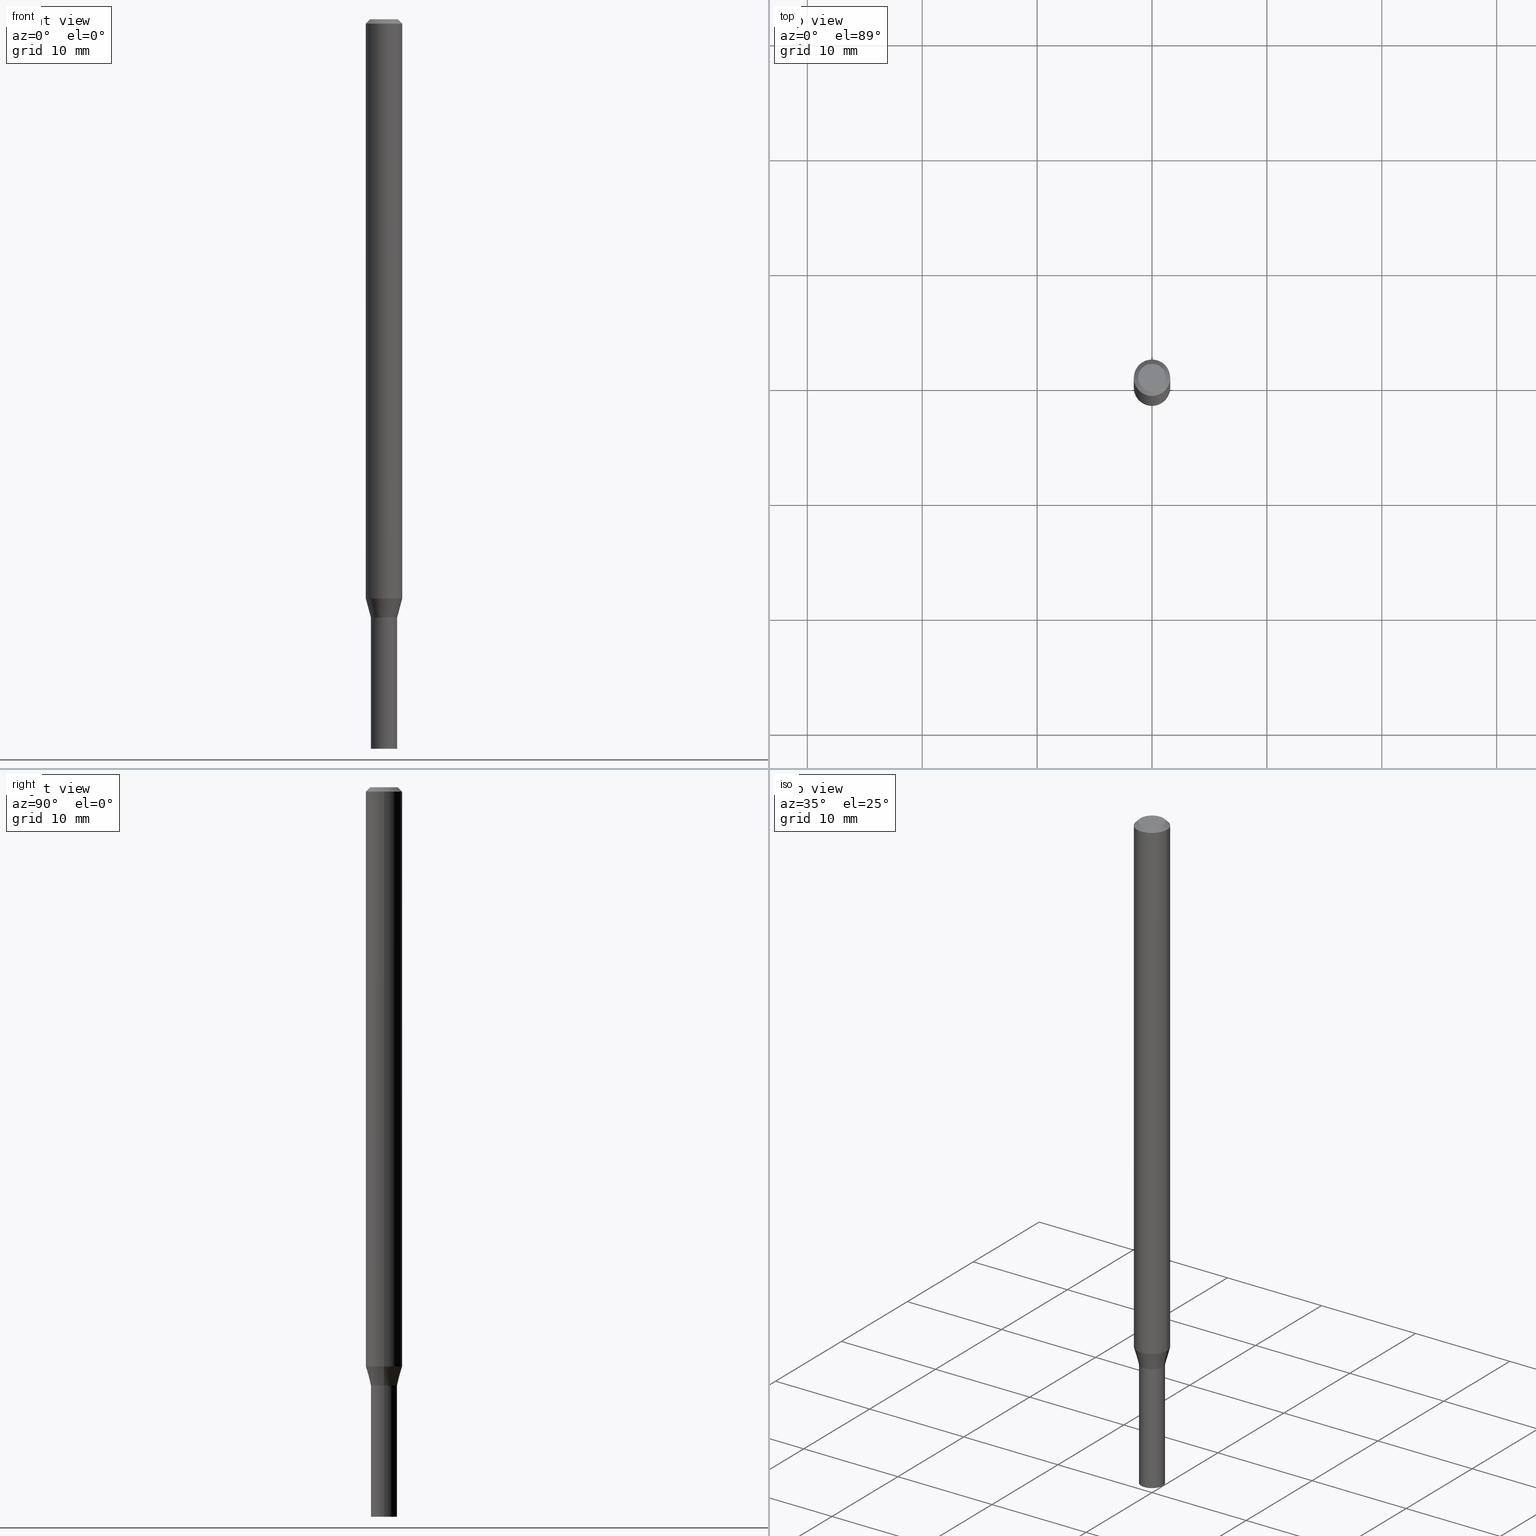
[diagram: canonical four-view strip — front | top / right | iso, engineering-drawing reading convention]
A machine part, canonical four-view strip (front | top / right | iso — engineering-drawing reading convention). The complete STEP part file that produces these views, byte-faithful:
ISO-10303-21;
HEADER;
FILE_DESCRIPTION (( 'STEP AP203' ),
    '1' );
FILE_NAME ('01247.STEP',
    '2024-03-20T00:31:18',
    ( '' ),
    ( '' ),
    'SwSTEP 2.0',
    'SolidWorks 2023',
    '' );
FILE_SCHEMA (( 'CONFIG_CONTROL_DESIGN' ));
ENDSEC;

DATA;
#1 = LOCAL_TIME ( 20, 31, 18.00000000000000000, #321 ) ;
#2 = APPROVAL_ROLE ( '' ) ;
#3 = ADVANCED_FACE ( 'NONE', ( #421 ), #372, .T. ) ;
#4 = DIRECTION ( 'NONE',  ( -2.445468806185136877E-29, 3.491481338843145188E-15, 1.000000000000000000 ) ) ;
#5 = DIRECTION ( 'NONE',  ( 1.000000000000000000, -6.982962677686267499E-15, 4.876176775795936353E-29 ) ) ;
#6 = CARTESIAN_POINT ( 'NONE',  ( 0.04499999999999999833, -3.142333204958819823E-16, 2.194279549108170967E-30 ) ) ;
#7 = DIRECTION ( 'NONE',  ( 1.000000000000000000, -6.982962677686266711E-15, 4.876176775795935793E-29 ) ) ;
#8 = CARTESIAN_POINT ( 'NONE',  ( -0.04499999999999999833, 3.197442310920450718E-16, -2.213520790614707560E-30 ) ) ;
#9 = EDGE_CURVE ( 'NONE', #164, #59, #284, .T. ) ;
#10 = CARTESIAN_POINT ( 'NONE',  ( 0.06250000000000000000, -4.888073874380388472E-16, -0.01499999999999999944 ) ) ;
#11 = EDGE_LOOP ( 'NONE', ( #198, #225 ) ) ;
#12 = CLOSED_SHELL ( 'NONE', ( #136, #196, #296, #174, #33, #327, #130, #3, #182, #303, #431, #441 ) ) ;
#13 = VERTEX_POINT ( 'NONE', #31 ) ;
#14 = FACE_OUTER_BOUND ( 'NONE', #173, .T. ) ;
#15 = EDGE_CURVE ( 'NONE', #373, #407, #144, .T. ) ;
#16 = EDGE_LOOP ( 'NONE', ( #454, #201, #170, #239 ) ) ;
#17 = ORIENTED_EDGE ( 'NONE', *, *, #446, .T. ) ;
#18 = DIRECTION ( 'NONE',  ( 1.000000000000000000, -6.982962677686258033E-15, 0.000000000000000000 ) ) ;
#19 = DATE_AND_TIME ( #203, #413 ) ;
#20 = AXIS2_PLACEMENT_3D ( 'NONE', #347, #354, #456 ) ;
#21 = LENGTH_MEASURE_WITH_UNIT ( LENGTH_MEASURE( 0.02539999999999999897 ), #131 );
#22 = EDGE_LOOP ( 'NONE', ( #417, #66, #294, #211 ) ) ;
#23 = DIRECTION ( 'NONE',  ( -2.438088387897960049E-29, 3.491481338843145188E-15, 1.000000000000000000 ) ) ;
#24 = CC_DESIGN_PERSON_AND_ORGANIZATION_ASSIGNMENT ( #423, #29, ( #338 ) ) ;
#25 = ORIENTED_EDGE ( 'NONE', *, *, #406, .F. ) ;
#26 = FACE_OUTER_BOUND ( 'NONE', #22, .T. ) ;
#27 = APPROVAL_DATE_TIME ( #102, #315 ) ;
#28 = CARTESIAN_POINT ( 'NONE',  ( 3.668203209277705088E-31, -5.237222008264718399E-17, -0.01499999999999999944 ) ) ;
#29 = PERSON_AND_ORGANIZATION_ROLE ( 'design_supplier' ) ;
#30 = COORDINATED_UNIVERSAL_TIME_OFFSET ( 5, 0, .BEHIND. ) ;
#31 = CARTESIAN_POINT ( 'NONE',  ( 0.04499999999999965139, -7.470024324454906438E-15, -2.049500000000000544 ) ) ;
#32 = CIRCLE ( 'NONE', #293, 0.04499999999999999833 ) ;
#33 = ADVANCED_FACE ( 'NONE', ( #108 ), #235, .T. ) ;
#34 = ORIENTED_EDGE ( 'NONE', *, *, #363, .F. ) ;
#35 = CYLINDRICAL_SURFACE ( 'NONE', #351, 0.06250000000000000000 ) ;
#36 = DATE_AND_TIME ( #362, #325 ) ;
#37 = APPROVAL ( #269, 'UNSPECIFIED' ) ;
#38 = DIRECTION ( 'NONE',  ( -2.445468806185136597E-29, 3.491481338843145583E-15, 1.000000000000000000 ) ) ;
#39 = CIRCLE ( 'NONE', #84, 0.06250000000000000000 ) ;
#40 = CARTESIAN_POINT ( 'NONE',  ( -0.04500000000000019956, -6.661604148842786074E-15, -2.050000000000000266 ) ) ;
#41 = DIRECTION ( 'NONE',  ( 1.000000000000000000, -6.982962677686258033E-15, 0.000000000000000000 ) ) ;
#42 = CARTESIAN_POINT ( 'NONE',  ( 3.316907271900976096E-16, 0.04749999999999999362, -2.081032274698379328E-16 ) ) ;
#43 = DIRECTION ( 'NONE',  ( -2.445468806185136877E-29, 3.491481338843145188E-15, 1.000000000000000000 ) ) ;
#44 = DIRECTION ( 'NONE',  ( -2.445468806185136597E-29, 3.491481338843145583E-15, 1.000000000000000000 ) ) ;
#45 = DIRECTION ( 'NONE',  ( 0.7071067811865496822, -7.319954787623263934E-15, -0.7071067811865454633 ) ) ;
#46 = CLOSED_SHELL ( 'NONE', ( #147, #287, #236, #195 ) ) ;
#47 = EDGE_CURVE ( 'NONE', #408, #373, #178, .T. ) ;
#48 = AXIS2_PLACEMENT_3D ( 'NONE', #42, #437, #248 ) ;
#49 = DIRECTION ( 'NONE',  ( -2.445468806185136597E-29, 3.491481338843145583E-15, 1.000000000000000000 ) ) ;
#50 = DIRECTION ( 'NONE',  ( 1.000000000000000000, -6.982962677686258033E-15, 0.000000000000000000 ) ) ;
#51 = DIRECTION ( 'NONE',  ( -0.7071067811861793118, 7.493145998869024141E-15, 0.7071067811869157227 ) ) ;
#52 = EDGE_CURVE ( 'NONE', #274, #342, #275, .T. ) ;
#53 = ORIENTED_EDGE ( 'NONE', *, *, #384, .F. ) ;
#54 = AXIS2_PLACEMENT_3D ( 'NONE', #75, #400, #7 ) ;
#55 = ORIENTED_EDGE ( 'NONE', *, *, #60, .T. ) ;
#56 = ORIENTED_EDGE ( 'NONE', *, *, #442, .T. ) ;
#57 = PLANE ( 'NONE',  #403 ) ;
#58 = COORDINATED_UNIVERSAL_TIME_OFFSET ( 5, 0, .BEHIND. ) ;
#59 = VERTEX_POINT ( 'NONE', #145 ) ;
#60 = EDGE_CURVE ( 'NONE', #135, #165, #343, .T. ) ;
#61 = AXIS2_PLACEMENT_3D ( 'NONE', #101, #139, #465 ) ;
#62 = VECTOR ( 'NONE', #43, 39.37007874015748143 ) ;
#63 = DIRECTION ( 'NONE',  ( -0.7071067811865496822, 2.468850131082278754E-15, -0.7071067811865454633 ) ) ;
#64 = CARTESIAN_POINT ( 'NONE',  ( 5.013211052679530360E-29, -7.157536744628448622E-15, -2.050000000000000266 ) ) ;
#65 = PERSON_AND_ORGANIZATION_ROLE ( 'creator' ) ;
#66 = ORIENTED_EDGE ( 'NONE', *, *, #349, .T. ) ;
#67 = ORIENTED_EDGE ( 'NONE', *, *, #442, .F. ) ;
#68 = PERSON_AND_ORGANIZATION_ROLE ( 'classification_officer' ) ;
#69 = DIRECTION ( 'NONE',  ( -2.445468806185136597E-29, 3.491481338843145583E-15, 1.000000000000000000 ) ) ;
#70 = AXIS2_PLACEMENT_3D ( 'NONE', #93, #451, #232 ) ;
#71 = PERSON_AND_ORGANIZATION ( #264, #85 ) ;
#72 = ADVANCED_BREP_SHAPE_REPRESENTATION ( '01247', ( #422, #97, #436 ), #114 ) ;
#73 = DIRECTION ( 'NONE',  ( -2.445468806185136877E-29, 3.491481338843145188E-15, 1.000000000000000000 ) ) ;
#74 = PLANE ( 'NONE',  #48 ) ;
#75 = CARTESIAN_POINT ( 'NONE',  ( 0.000000000000000000, 0.000000000000000000, 0.000000000000000000 ) ) ;
#76 = DIRECTION ( 'NONE',  ( 1.000000000000000000, -6.982962677686258033E-15, 0.000000000000000000 ) ) ;
#77 = AXIS2_PLACEMENT_3D ( 'NONE', #339, #365, #188 ) ;
#78 = CARTESIAN_POINT ( 'NONE',  ( 5.013211052679530920E-29, -7.157536744628450200E-15, -2.050000000000000711 ) ) ;
#79 = CARTESIAN_POINT ( 'NONE',  ( -0.04499999999999992895, 3.197442310920445788E-16, -2.213520790614704057E-30 ) ) ;
#80 = CARTESIAN_POINT ( 'NONE',  ( 5.013211052679530920E-29, -7.157536744628450200E-15, -2.050000000000000711 ) ) ;
#81 = DIRECTION ( 'NONE',  ( 1.000000000000000000, -6.982962677686266711E-15, 4.876176775795935793E-29 ) ) ;
#82 = DIRECTION ( 'NONE',  ( -2.445468806185136877E-29, 3.491481338843145188E-15, 1.000000000000000000 ) ) ;
#83 = DIRECTION ( 'NONE',  ( 1.000000000000000000, -6.982962677686269077E-15, 0.000000000000000000 ) ) ;
#84 = AXIS2_PLACEMENT_3D ( 'NONE', #340, #44, #191 ) ;
#85 = ORGANIZATION ( 'UNSPECIFIED', 'UNSPECIFIED', '' ) ;
#86 = ORIENTED_EDGE ( 'NONE', *, *, #94, .F. ) ;
#87 = EDGE_LOOP ( 'NONE', ( #305, #197, #360, #158 ) ) ;
#88 = AXIS2_PLACEMENT_3D ( 'NONE', #28, #357, #143 ) ;
#89 = CONICAL_SURFACE ( 'NONE', #370, 0.04500000000000019956, 0.2617993877991490748 ) ;
#90 = EDGE_LOOP ( 'NONE', ( #162, #122, #457, #266 ) ) ;
#91 = DIRECTION ( 'NONE',  ( 0.2588190451025204064, 1.565188264969629659E-15, 0.9659258262890684232 ) ) ;
#92 = MECHANICAL_CONTEXT ( 'NONE', #134, 'mechanical' ) ;
#93 = CARTESIAN_POINT ( 'NONE',  ( 2.066805758436263276E-45, -2.950850862763961857E-31, -8.451572774957708509E-17 ) ) ;
#94 = EDGE_CURVE ( 'NONE', #342, #274, #251, .T. ) ;
#95 =( NAMED_UNIT ( * ) PLANE_ANGLE_UNIT ( ) SI_UNIT ( $, .RADIAN. ) );
#96 = ORIENTED_EDGE ( 'NONE', *, *, #349, .F. ) ;
#97 = MANIFOLD_SOLID_BREP ( 'Body-Move/Copy2[2]', #12 ) ;
#98 = AXIS2_PLACEMENT_3D ( 'NONE', #112, #38, #81 ) ;
#99 = ORIENTED_EDGE ( 'NONE', *, *, #313, .T. ) ;
#100 = EDGE_CURVE ( 'NONE', #447, #13, #392, .T. ) ;
#101 = CARTESIAN_POINT ( 'NONE',  ( 6.113672015462842613E-29, -8.728703347107864943E-15, -2.500000000000000000 ) ) ;
#102 = DATE_AND_TIME ( #318, #179 ) ;
#103 = DIRECTION ( 'NONE',  ( -2.445468806185136597E-29, 3.491481338843145583E-15, 1.000000000000000000 ) ) ;
#104 = APPROVAL_STATUS ( 'not_yet_approved' ) ;
#105 = CARTESIAN_POINT ( 'NONE',  ( -0.04500000000000019956, -6.837792513536403254E-15, -2.050000000000000266 ) ) ;
#106 = AXIS2_PLACEMENT_3D ( 'NONE', #429, #110, #254 ) ;
#107 = AXIS2_PLACEMENT_3D ( 'NONE', #78, #185, #216 ) ;
#108 = FACE_OUTER_BOUND ( 'NONE', #419, .T. ) ;
#109 = CC_DESIGN_PERSON_AND_ORGANIZATION_ASSIGNMENT ( #71, #65, ( #338 ) ) ;
#110 = DIRECTION ( 'NONE',  ( -2.445468806185136597E-29, 3.491481338843145583E-15, 1.000000000000000000 ) ) ;
#111 = DIRECTION ( 'NONE',  ( 1.000000000000000000, -6.982962677686257244E-15, 0.000000000000000000 ) ) ;
#112 = CARTESIAN_POINT ( 'NONE',  ( 0.000000000000000000, 0.000000000000000000, 0.000000000000000000 ) ) ;
#113 = CARTESIAN_POINT ( 'NONE',  ( 5.011988318276438679E-29, -7.155791003959027907E-15, -2.049500000000000544 ) ) ;
#114 =( GEOMETRIC_REPRESENTATION_CONTEXT ( 3 ) GLOBAL_UNCERTAINTY_ASSIGNED_CONTEXT ( ( #399 ) ) GLOBAL_UNIT_ASSIGNED_CONTEXT ( ( #169, #95, #172 ) ) REPRESENTATION_CONTEXT ( 'NONE', 'WORKASPACE' ) );
#115 = DIRECTION ( 'NONE',  ( 1.000000000000000000, -6.982962677686266711E-15, 4.876176775795935793E-29 ) ) ;
#116 = DIRECTION ( 'NONE',  ( -1.000000000000000000, 6.982962677686265922E-15, -4.876176775795935793E-29 ) ) ;
#117 = DIRECTION ( 'NONE',  ( 1.000000000000000000, -6.982962677686262766E-15, 0.000000000000000000 ) ) ;
#118 = CYLINDRICAL_SURFACE ( 'NONE', #193, 0.04499999999999999833 ) ;
#119 = CARTESIAN_POINT ( 'NONE',  ( -0.04749999999999999362, 3.578768372314209027E-16, -8.451572774957950098E-17 ) ) ;
#120 = PRODUCT_DEFINITION ( 'UNKNOWN', '', #338, #335 ) ;
#121 = EDGE_LOOP ( 'NONE', ( #231, #371, #438, #56 ) ) ;
#122 = ORIENTED_EDGE ( 'NONE', *, *, #94, .T. ) ;
#123 = DIRECTION ( 'NONE',  ( 2.445468806185136597E-29, -3.491481338843145583E-15, -1.000000000000000000 ) ) ;
#124 = CARTESIAN_POINT ( 'NONE',  ( 0.000000000000000000, 0.000000000000000000, 0.000000000000000000 ) ) ;
#125 = APPLICATION_CONTEXT ( 'configuration controlled 3d designs of mechanical parts and assemblies' ) ;
#126 = VERTEX_POINT ( 'NONE', #242 ) ;
#127 = PERSON_AND_ORGANIZATION ( #264, #85 ) ;
#128 = AXIS2_PLACEMENT_3D ( 'NONE', #171, #123, #175 ) ;
#129 = APPROVAL_PERSON_ORGANIZATION ( #240, #341, #2 ) ;
#130 = ADVANCED_FACE ( 'NONE', ( #214 ), #35, .T. ) ;
#131 =( LENGTH_UNIT ( ) NAMED_UNIT ( * ) SI_UNIT ( $, .METRE. ) );
#132 = ORIENTED_EDGE ( 'NONE', *, *, #226, .F. ) ;
#133 = PLANE ( 'NONE',  #146 ) ;
#134 = APPLICATION_CONTEXT ( 'configuration controlled 3d designs of mechanical parts and assemblies' ) ;
#135 = VERTEX_POINT ( 'NONE', #218 ) ;
#136 = ADVANCED_FACE ( 'NONE', ( #152 ), #288, .F. ) ;
#137 = APPLICATION_PROTOCOL_DEFINITION ( 'international standard', 'config_control_design', 1994, #134 ) ;
#138 = CIRCLE ( 'NONE', #261, 0.04449999999999999789 ) ;
#139 = DIRECTION ( 'NONE',  ( -2.445468806185136597E-29, 3.491481338843145583E-15, 1.000000000000000000 ) ) ;
#140 = COORDINATED_UNIVERSAL_TIME_OFFSET ( 5, 0, .BEHIND. ) ;
#141 = DIRECTION ( 'NONE',  ( -2.445468806185136597E-29, 3.491481338843145583E-15, 1.000000000000000000 ) ) ;
#142 = DATE_AND_TIME ( #463, #1 ) ;
#143 = DIRECTION ( 'NONE',  ( -1.000000000000000000, 6.982962677686266711E-15, 0.000000000000000000 ) ) ;
#144 = CIRCLE ( 'NONE', #205, 0.06250000000000000000 ) ;
#145 = CARTESIAN_POINT ( 'NONE',  ( -0.06250000000000000000, -6.485415784149167316E-15, -1.984689110867545514 ) ) ;
#146 = AXIS2_PLACEMENT_3D ( 'NONE', #163, #23, #230 ) ;
#147 = ADVANCED_FACE ( 'NONE', ( #221 ), #290, .T. ) ;
#148 = DIRECTION ( 'NONE',  ( -2.445468806185136597E-29, 3.491481338843145583E-15, 1.000000000000000000 ) ) ;
#149 = DIRECTION ( 'NONE',  ( 2.438088387897960049E-29, -3.491481338843145188E-15, -1.000000000000000000 ) ) ;
#150 = LINE ( 'NONE', #291, #389 ) ;
#151 = CARTESIAN_POINT ( 'NONE',  ( 0.000000000000000000, 0.000000000000000000, 0.000000000000000000 ) ) ;
#152 = FACE_OUTER_BOUND ( 'NONE', #385, .T. ) ;
#153 = DIMENSIONAL_EXPONENTS ( 1.000000000000000000, 0.000000000000000000, 0.000000000000000000, 0.000000000000000000, 0.000000000000000000, 0.000000000000000000, 0.000000000000000000 ) ;
#154 = VECTOR ( 'NONE', #91, 39.37007874015748143 ) ;
#155 = ORIENTED_EDGE ( 'NONE', *, *, #257, .T. ) ;
#156 = DIRECTION ( 'NONE',  ( -2.445468806185136597E-29, 3.491481338843145583E-15, 1.000000000000000000 ) ) ;
#157 = LINE ( 'NONE', #8, #62 ) ;
#158 = ORIENTED_EDGE ( 'NONE', *, *, #189, .F. ) ;
#159 = EDGE_CURVE ( 'NONE', #59, #373, #292, .T. ) ;
#160 = LINE ( 'NONE', #6, #161 ) ;
#161 = VECTOR ( 'NONE', #302, 39.37007874015748143 ) ;
#162 = ORIENTED_EDGE ( 'NONE', *, *, #418, .F. ) ;
#163 = CARTESIAN_POINT ( 'NONE',  ( 6.194428952736783458E-29, -8.613054816532157721E-15, -2.500000000000000000 ) ) ;
#164 = VERTEX_POINT ( 'NONE', #40 ) ;
#165 = VERTEX_POINT ( 'NONE', #394 ) ;
#166 = CARTESIAN_POINT ( 'NONE',  ( 4.853495310601896442E-29, -6.929504993999229932E-15, -1.984689110867545514 ) ) ;
#167 = CIRCLE ( 'NONE', #412, 0.06250000000000000000 ) ;
#168 = CC_DESIGN_APPROVAL ( #37, ( #120 ) ) ;
#169 =( CONVERSION_BASED_UNIT ( 'INCH', #21 ) LENGTH_UNIT ( ) NAMED_UNIT ( #153 ) );
#170 = ORIENTED_EDGE ( 'NONE', *, *, #189, .T. ) ;
#171 = CARTESIAN_POINT ( 'NONE',  ( 3.668203209277705088E-31, -5.237222008264718399E-17, -0.01499999999999999944 ) ) ;
#172 =( NAMED_UNIT ( * ) SI_UNIT ( $, .STERADIAN. ) SOLID_ANGLE_UNIT ( ) );
#173 = EDGE_LOOP ( 'NONE', ( #350, #86 ) ) ;
#174 = ADVANCED_FACE ( 'NONE', ( #395 ), #432, .T. ) ;
#175 = DIRECTION ( 'NONE',  ( -1.000000000000000000, 6.982962677686266711E-15, 0.000000000000000000 ) ) ;
#176 = DIRECTION ( 'NONE',  ( 1.000000000000000000, -6.982962677686266711E-15, 0.000000000000000000 ) ) ;
#177 = CIRCLE ( 'NONE', #228, 0.04449999999999999789 ) ;
#178 = LINE ( 'NONE', #246, #259 ) ;
#179 = LOCAL_TIME ( 20, 31, 18.00000000000000000, #30 ) ;
#180 = ORIENTED_EDGE ( 'NONE', *, *, #418, .T. ) ;
#181 = DATE_AND_TIME ( #243, #375 ) ;
#182 = ADVANCED_FACE ( 'NONE', ( #326 ), #74, .F. ) ;
#183 = DIRECTION ( 'NONE',  ( 1.000000000000000000, -6.982962677686266711E-15, 4.876176775795935793E-29 ) ) ;
#184 = AXIS2_PLACEMENT_3D ( 'NONE', #279, #319, #282 ) ;
#185 = DIRECTION ( 'NONE',  ( -2.445468806185136597E-29, 3.491481338843145583E-15, 1.000000000000000000 ) ) ;
#186 = DIRECTION ( 'NONE',  ( 1.000000000000000000, -6.982962677686258033E-15, 0.000000000000000000 ) ) ;
#187 = FACE_OUTER_BOUND ( 'NONE', #460, .T. ) ;
#188 = DIRECTION ( 'NONE',  ( 1.000000000000000000, -6.982962677686267499E-15, 4.884662768193073002E-29 ) ) ;
#189 = EDGE_CURVE ( 'NONE', #126, #407, #398, .T. ) ;
#190 = CARTESIAN_POINT ( 'NONE',  ( 0.06250000000000000000, -4.364351673553916694E-16, 3.047610484872459871E-30 ) ) ;
#191 = DIRECTION ( 'NONE',  ( 1.000000000000000000, -6.982962677686262766E-15, 0.000000000000000000 ) ) ;
#192 = DIRECTION ( 'NONE',  ( -2.445468806185136597E-29, 3.491481338843145583E-15, 1.000000000000000000 ) ) ;
#193 = AXIS2_PLACEMENT_3D ( 'NONE', #151, #405, #115 ) ;
#194 = CARTESIAN_POINT ( 'NONE',  ( 5.013211052679530360E-29, -7.157536744628448622E-15, -2.050000000000000266 ) ) ;
#195 = ADVANCED_FACE ( 'NONE', ( #187 ), #332, .F. ) ;
#196 = ADVANCED_FACE ( 'NONE', ( #252 ), #276, .T. ) ;
#197 = ORIENTED_EDGE ( 'NONE', *, *, #159, .T. ) ;
#198 = ORIENTED_EDGE ( 'NONE', *, *, #384, .T. ) ;
#199 = AXIS2_PLACEMENT_3D ( 'NONE', #328, #404, #5 ) ;
#200 = VERTEX_POINT ( 'NONE', #440 ) ;
#201 = ORIENTED_EDGE ( 'NONE', *, *, #334, .T. ) ;
#202 = DIRECTION ( 'NONE',  ( 1.000000000000000000, -6.982962677686265922E-15, 4.876176775795935793E-29 ) ) ;
#203 = CALENDAR_DATE ( 2024, 19, 3 ) ;
#204 = ORIENTED_EDGE ( 'NONE', *, *, #222, .T. ) ;
#205 = AXIS2_PLACEMENT_3D ( 'NONE', #209, #245, #176 ) ;
#206 = CIRCLE ( 'NONE', #285, 0.04499999999999965139 ) ;
#207 = EDGE_CURVE ( 'NONE', #322, #416, #250, .T. ) ;
#208 = ORIENTED_EDGE ( 'NONE', *, *, #217, .F. ) ;
#209 = CARTESIAN_POINT ( 'NONE',  ( 3.668203209277705088E-31, -5.237222008264718399E-17, -0.01499999999999999944 ) ) ;
#210 = DIRECTION ( 'NONE',  ( -0.2588190451025204064, 5.211531920934543942E-15, 0.9659258262890684232 ) ) ;
#211 = ORIENTED_EDGE ( 'NONE', *, *, #334, .F. ) ;
#212 = CC_DESIGN_PERSON_AND_ORGANIZATION_ASSIGNMENT ( #461, #68, ( #352 ) ) ;
#213 = APPROVAL_ROLE ( '' ) ;
#214 = FACE_OUTER_BOUND ( 'NONE', #16, .T. ) ;
#215 = PERSON_AND_ORGANIZATION ( #264, #85 ) ;
#216 = DIRECTION ( 'NONE',  ( 1.000000000000000000, -6.982962677686257244E-15, 0.000000000000000000 ) ) ;
#217 = EDGE_CURVE ( 'NONE', #274, #135, #160, .T. ) ;
#218 = CARTESIAN_POINT ( 'NONE',  ( 0.04499999999999999833, -7.471770065124331886E-15, -2.050000000000000266 ) ) ;
#219 = VECTOR ( 'NONE', #51, 39.37007874015748143 ) ;
#220 = FACE_OUTER_BOUND ( 'NONE', #121, .T. ) ;
#221 = FACE_OUTER_BOUND ( 'NONE', #346, .T. ) ;
#222 = EDGE_CURVE ( 'NONE', #447, #164, #244, .T. ) ;
#223 = VECTOR ( 'NONE', #82, 39.37007874015748143 ) ;
#224 = CARTESIAN_POINT ( 'NONE',  ( -0.04499999999999965139, -6.836046772866985695E-15, -2.049500000000000544 ) ) ;
#225 = ORIENTED_EDGE ( 'NONE', *, *, #272, .T. ) ;
#226 = EDGE_CURVE ( 'NONE', #322, #464, #177, .T. ) ;
#227 = DIRECTION ( 'NONE',  ( -2.445468806185136597E-29, 3.491481338843145583E-15, 1.000000000000000000 ) ) ;
#228 = AXIS2_PLACEMENT_3D ( 'NONE', #80, #156, #111 ) ;
#229 = ORIENTED_EDGE ( 'NONE', *, *, #446, .F. ) ;
#230 = DIRECTION ( 'NONE',  ( 1.000000000000000000, -6.982962677686265922E-15, 4.876176775795935793E-29 ) ) ;
#231 = ORIENTED_EDGE ( 'NONE', *, *, #379, .F. ) ;
#232 = DIRECTION ( 'NONE',  ( 1.000000000000000000, -6.982962677686267499E-15, 4.884662768193073002E-29 ) ) ;
#233 = ORIENTED_EDGE ( 'NONE', *, *, #207, .T. ) ;
#234 = LINE ( 'NONE', #380, #154 ) ;
#235 = CONICAL_SURFACE ( 'NONE', #443, 0.04500000000000019956, 0.2617993877991490748 ) ;
#236 = ADVANCED_FACE ( 'NONE', ( #434 ), #118, .T. ) ;
#237 = EDGE_CURVE ( 'NONE', #126, #59, #39, .T. ) ;
#238 = CC_DESIGN_SECURITY_CLASSIFICATION ( #352, ( #338 ) ) ;
#239 = ORIENTED_EDGE ( 'NONE', *, *, #15, .F. ) ;
#240 = PERSON_AND_ORGANIZATION ( #264, #85 ) ;
#241 = EDGE_LOOP ( 'NONE', ( #270, #233, #67, #229 ) ) ;
#242 = CARTESIAN_POINT ( 'NONE',  ( 0.06250000000000000000, -7.365940161354620812E-15, -1.984689110867545514 ) ) ;
#243 = CALENDAR_DATE ( 2024, 19, 3 ) ;
#244 = CIRCLE ( 'NONE', #316, 0.04500000000000019956 ) ;
#245 = DIRECTION ( 'NONE',  ( -2.445468806185136597E-29, 3.491481338843145583E-15, 1.000000000000000000 ) ) ;
#246 = CARTESIAN_POINT ( 'NONE',  ( -0.06250000000000000000, 3.840629472727444916E-16, -0.01499999999999999944 ) ) ;
#247 = PRODUCT_RELATED_PRODUCT_CATEGORY ( 'detail', '', ( #320 ) ) ;
#248 = DIRECTION ( 'NONE',  ( -1.000000000000000000, 6.982962677686265922E-15, -4.876176775795935793E-29 ) ) ;
#249 = CARTESIAN_POINT ( 'NONE',  ( 5.011988318276438679E-29, -7.155791003959027907E-15, -2.049500000000000544 ) ) ;
#250 = LINE ( 'NONE', #262, #219 ) ;
#251 = CIRCLE ( 'NONE', #410, 0.04499999999999999833 ) ;
#252 = FACE_OUTER_BOUND ( 'NONE', #241, .T. ) ;
#253 = CARTESIAN_POINT ( 'NONE',  ( 0.04500000000000019956, -7.471770065124331886E-15, -2.050000000000000266 ) ) ;
#254 = DIRECTION ( 'NONE',  ( 1.000000000000000000, -6.982962677686267499E-15, 4.876176775795936353E-29 ) ) ;
#255 = LINE ( 'NONE', #369, #397 ) ;
#256 = CARTESIAN_POINT ( 'NONE',  ( -0.06250000000000000000, -3.046849397190876087E-15, -0.01499999999999999944 ) ) ;
#257 = EDGE_CURVE ( 'NONE', #165, #135, #32, .T. ) ;
#258 = CARTESIAN_POINT ( 'NONE',  ( 5.013211052679530360E-29, -7.157536744628448622E-15, -2.050000000000000266 ) ) ;
#259 = VECTOR ( 'NONE', #63, 39.37007874015748143 ) ;
#260 = CYLINDRICAL_SURFACE ( 'NONE', #199, 0.04499999999999992895 ) ;
#261 = AXIS2_PLACEMENT_3D ( 'NONE', #368, #289, #439 ) ;
#262 = CARTESIAN_POINT ( 'NONE',  ( -0.04449999999999999789, -6.841345227215205730E-15, -2.050000000000000711 ) ) ;
#263 = ORIENTED_EDGE ( 'NONE', *, *, #363, .T. ) ;
#264 = PERSON ( 'UNSPECIFIED', 'UNSPECIFIED', 'UNSPECIFIED', ('UNSPECIFIED'), ('UNSPECIFIED'), ('UNSPECIFIED') ) ;
#265 = ORIENTED_EDGE ( 'NONE', *, *, #226, .T. ) ;
#266 = ORIENTED_EDGE ( 'NONE', *, *, #257, .F. ) ;
#267 = VECTOR ( 'NONE', #73, 39.37007874015748143 ) ;
#268 = VECTOR ( 'NONE', #4, 39.37007874015748143 ) ;
#269 = APPROVAL_STATUS ( 'not_yet_approved' ) ;
#270 = ORIENTED_EDGE ( 'NONE', *, *, #406, .T. ) ;
#271 = CARTESIAN_POINT ( 'NONE',  ( -0.04449999999999999789, -6.838696000041095318E-15, -2.050000000000000711 ) ) ;
#272 = EDGE_CURVE ( 'NONE', #200, #408, #344, .T. ) ;
#273 = PRODUCT_DEFINITION_SHAPE ( 'NONE', 'NONE',  #120 ) ;
#274 = VERTEX_POINT ( 'NONE', #414 ) ;
#275 = CIRCLE ( 'NONE', #61, 0.04499999999999999833 ) ;
#276 = CONICAL_SURFACE ( 'NONE', #107, 0.04449999999999999789, 0.7853981633969275844 ) ;
#277 = APPROVAL_PERSON_ORGANIZATION ( #425, #315, #213 ) ;
#278 = APPROVAL_DATE_TIME ( #19, #37 ) ;
#279 = CARTESIAN_POINT ( 'NONE',  ( 5.013211052679530360E-29, -7.157536744628448622E-15, -2.050000000000000266 ) ) ;
#280 = COORDINATED_UNIVERSAL_TIME_OFFSET ( 5, 0, .BEHIND. ) ;
#281 = EDGE_CURVE ( 'NONE', #447, #126, #234, .T. ) ;
#282 = DIRECTION ( 'NONE',  ( 1.000000000000000000, -6.982962677686269077E-15, 0.000000000000000000 ) ) ;
#283 = DATE_TIME_ROLE ( 'classification_date' ) ;
#284 = LINE ( 'NONE', #105, #358 ) ;
#285 = AXIS2_PLACEMENT_3D ( 'NONE', #249, #148, #186 ) ;
#286 = DIRECTION ( 'NONE',  ( 1.000000000000000000, -6.982962677686246989E-15, 0.000000000000000000 ) ) ;
#287 = ADVANCED_FACE ( 'NONE', ( #14 ), #133, .F. ) ;
#288 = CYLINDRICAL_SURFACE ( 'NONE', #106, 0.04499999999999992895 ) ;
#289 = DIRECTION ( 'NONE',  ( -2.445468806185136597E-29, 3.491481338843145583E-15, 1.000000000000000000 ) ) ;
#290 = CYLINDRICAL_SURFACE ( 'NONE', #98, 0.04499999999999999833 ) ;
#291 = CARTESIAN_POINT ( 'NONE',  ( 0.04449999999999999789, -7.468278583785488879E-15, -2.050000000000000711 ) ) ;
#292 = LINE ( 'NONE', #364, #374 ) ;
#293 = AXIS2_PLACEMENT_3D ( 'NONE', #258, #402, #83 ) ;
#294 = ORIENTED_EDGE ( 'NONE', *, *, #281, .T. ) ;
#295 = APPROVAL_PERSON_ORGANIZATION ( #127, #37, #415 ) ;
#296 = ADVANCED_FACE ( 'NONE', ( #304 ), #336, .T. ) ;
#297 = CARTESIAN_POINT ( 'NONE',  ( -0.04499999999999999833, -7.623375814776112203E-15, -2.500000000000000000 ) ) ;
#298 = CARTESIAN_POINT ( 'NONE',  ( 5.013211052679530920E-29, -7.157536744628450200E-15, -2.050000000000000711 ) ) ;
#299 = EDGE_LOOP ( 'NONE', ( #25, #132 ) ) ;
#300 = CIRCLE ( 'NONE', #420, 0.04499999999999965139 ) ;
#301 = CC_DESIGN_APPROVAL ( #341, ( #338 ) ) ;
#302 = DIRECTION ( 'NONE',  ( -2.445468806185136877E-29, 3.491481338843145188E-15, 1.000000000000000000 ) ) ;
#303 = ADVANCED_FACE ( 'NONE', ( #378 ), #57, .F. ) ;
#304 = FACE_OUTER_BOUND ( 'NONE', #345, .T. ) ;
#305 = ORIENTED_EDGE ( 'NONE', *, *, #237, .T. ) ;
#306 = PERSON_AND_ORGANIZATION_ROLE ( 'design_owner' ) ;
#307 = ORIENTED_EDGE ( 'NONE', *, *, #272, .F. ) ;
#308 = CIRCLE ( 'NONE', #20, 0.06250000000000000000 ) ;
#309 = CC_DESIGN_DATE_AND_TIME_ASSIGNMENT ( #142, #283, ( #352 ) ) ;
#310 = ORIENTED_EDGE ( 'NONE', *, *, #9, .T. ) ;
#311 = DIRECTION ( 'NONE',  ( -2.438088387897960049E-29, 3.491481338843145188E-15, 1.000000000000000000 ) ) ;
#312 = ORIENTED_EDGE ( 'NONE', *, *, #281, .F. ) ;
#313 = EDGE_CURVE ( 'NONE', #407, #373, #308, .T. ) ;
#314 = DIRECTION ( 'NONE',  ( 1.000000000000000000, -6.982962677686258033E-15, 0.000000000000000000 ) ) ;
#315 = APPROVAL ( #104, 'UNSPECIFIED' ) ;
#316 = AXIS2_PLACEMENT_3D ( 'NONE', #401, #366, #50 ) ;
#317 = SECURITY_CLASSIFICATION_LEVEL ( 'unclassified' ) ;
#318 = CALENDAR_DATE ( 2024, 19, 3 ) ;
#319 = DIRECTION ( 'NONE',  ( -2.445468806185136597E-29, 3.491481338843145583E-15, 1.000000000000000000 ) ) ;
#320 = PRODUCT ( '01247', '01247', '', ( #92 ) ) ;
#321 = COORDINATED_UNIVERSAL_TIME_OFFSET ( 5, 0, .BEHIND. ) ;
#322 = VERTEX_POINT ( 'NONE', #271 ) ;
#323 = DATE_TIME_ROLE ( 'creation_date' ) ;
#324 = CARTESIAN_POINT ( 'NONE',  ( 0.04499999999999992895, -3.142333204958815385E-16, 2.194279549108167814E-30 ) ) ;
#325 = LOCAL_TIME ( 20, 31, 18.00000000000000000, #140 ) ;
#326 = FACE_OUTER_BOUND ( 'NONE', #11, .T. ) ;
#327 = ADVANCED_FACE ( 'NONE', ( #26 ), #89, .T. ) ;
#328 = CARTESIAN_POINT ( 'NONE',  ( 0.000000000000000000, 0.000000000000000000, 0.000000000000000000 ) ) ;
#329 = CARTESIAN_POINT ( 'NONE',  ( 3.142333204959320256E-16, 0.04499999999999284434, -2.050000000000000711 ) ) ;
#330 = DIRECTION ( 'NONE',  ( -2.445468806185136597E-29, 3.491481338843145583E-15, 1.000000000000000000 ) ) ;
#331 = ORIENTED_EDGE ( 'NONE', *, *, #52, .T. ) ;
#332 = PLANE ( 'NONE',  #435 ) ;
#333 = DIRECTION ( 'NONE',  ( 1.000000000000000000, -6.982962677686257244E-15, 0.000000000000000000 ) ) ;
#334 = EDGE_CURVE ( 'NONE', #59, #126, #167, .T. ) ;
#335 = DESIGN_CONTEXT ( 'detailed design', #125, 'design' ) ;
#336 = CONICAL_SURFACE ( 'NONE', #128, 0.06250000000000000000, 0.7853981633974512766 ) ;
#337 = LINE ( 'NONE', #79, #223 ) ;
#338 = PRODUCT_DEFINITION_FORMATION_WITH_SPECIFIED_SOURCE ( 'ANY', '', #320, .NOT_KNOWN. ) ;
#339 = CARTESIAN_POINT ( 'NONE',  ( 2.066805758436263276E-45, -2.950850862763961857E-31, -8.451572774957708509E-17 ) ) ;
#340 = CARTESIAN_POINT ( 'NONE',  ( 4.853495310601896442E-29, -6.929504993999229932E-15, -1.984689110867545514 ) ) ;
#341 = APPROVAL ( #386, 'UNSPECIFIED' ) ;
#342 = VERTEX_POINT ( 'NONE', #297 ) ;
#343 = CIRCLE ( 'NONE', #184, 0.04499999999999999833 ) ;
#344 = CIRCLE ( 'NONE', #70, 0.04749999999999999362 ) ;
#345 = EDGE_LOOP ( 'NONE', ( #307, #428, #99, #445 ) ) ;
#346 = EDGE_LOOP ( 'NONE', ( #331, #180, #426, #208 ) ) ;
#347 = CARTESIAN_POINT ( 'NONE',  ( 3.668203209277705088E-31, -5.237222008264718399E-17, -0.01499999999999999944 ) ) ;
#348 = DIRECTION ( 'NONE',  ( 0.000000000000000000, 0.000000000000000000, 1.000000000000000000 ) ) ;
#349 = EDGE_CURVE ( 'NONE', #164, #447, #427, .T. ) ;
#350 = ORIENTED_EDGE ( 'NONE', *, *, #52, .F. ) ;
#351 = AXIS2_PLACEMENT_3D ( 'NONE', #388, #69, #183 ) ;
#352 = SECURITY_CLASSIFICATION ( '', '', #317 ) ;
#353 = EDGE_LOOP ( 'NONE', ( #377, #265, #17, #34 ) ) ;
#354 = DIRECTION ( 'NONE',  ( -2.445468806185136597E-29, 3.491481338843145583E-15, 1.000000000000000000 ) ) ;
#355 = ORIENTED_EDGE ( 'NONE', *, *, #379, .T. ) ;
#356 = CC_DESIGN_DATE_AND_TIME_ASSIGNMENT ( #36, #323, ( #120 ) ) ;
#357 = DIRECTION ( 'NONE',  ( 2.445468806185136597E-29, -3.491481338843145583E-15, -1.000000000000000000 ) ) ;
#358 = VECTOR ( 'NONE', #210, 39.37007874015748143 ) ;
#359 = AXIS2_PLACEMENT_3D ( 'NONE', #194, #49, #76 ) ;
#360 = ORIENTED_EDGE ( 'NONE', *, *, #313, .F. ) ;
#361 = CARTESIAN_POINT ( 'NONE',  ( 5.013211052679530360E-29, -7.157536744628448622E-15, -2.050000000000000266 ) ) ;
#362 = CALENDAR_DATE ( 2024, 19, 3 ) ;
#363 = EDGE_CURVE ( 'NONE', #416, #13, #206, .T. ) ;
#364 = CARTESIAN_POINT ( 'NONE',  ( -0.06250000000000000000, 4.440892098500626162E-16, -3.074334431409316114E-30 ) ) ;
#365 = DIRECTION ( 'NONE',  ( -2.445468806185136597E-29, 3.491481338843145583E-15, 1.000000000000000000 ) ) ;
#366 = DIRECTION ( 'NONE',  ( -2.445468806185136597E-29, 3.491481338843145583E-15, 1.000000000000000000 ) ) ;
#367 = DIRECTION ( 'NONE',  ( -2.445468806185136877E-29, 3.491481338843145188E-15, 1.000000000000000000 ) ) ;
#368 = CARTESIAN_POINT ( 'NONE',  ( 5.013211052679530920E-29, -7.157536744628450200E-15, -2.050000000000000711 ) ) ;
#369 = CARTESIAN_POINT ( 'NONE',  ( 0.06250000000000000000, -4.811533449433679005E-16, -0.01499999999999999944 ) ) ;
#370 = AXIS2_PLACEMENT_3D ( 'NONE', #409, #227, #18 ) ;
#371 = ORIENTED_EDGE ( 'NONE', *, *, #222, .F. ) ;
#372 = CONICAL_SURFACE ( 'NONE', #88, 0.06250000000000000000, 0.7853981633974512766 ) ;
#373 = VERTEX_POINT ( 'NONE', #256 ) ;
#374 = VECTOR ( 'NONE', #367, 39.37007874015748143 ) ;
#375 = LOCAL_TIME ( 20, 31, 18.00000000000000000, #280 ) ;
#376 = PERSON_AND_ORGANIZATION ( #264, #85 ) ;
#377 = ORIENTED_EDGE ( 'NONE', *, *, #207, .F. ) ;
#378 = FACE_OUTER_BOUND ( 'NONE', #299, .T. ) ;
#379 = EDGE_CURVE ( 'NONE', #164, #416, #337, .T. ) ;
#380 = CARTESIAN_POINT ( 'NONE',  ( 0.04500000000000019956, -7.471770065124331886E-15, -2.050000000000000266 ) ) ;
#381 = ORIENTED_EDGE ( 'NONE', *, *, #100, .F. ) ;
#382 = CONICAL_SURFACE ( 'NONE', #444, 0.04449999999999999789, 0.7853981633969275844 ) ;
#383 = APPROVAL_DATE_TIME ( #181, #341 ) ;
#384 = EDGE_CURVE ( 'NONE', #408, #200, #466, .T. ) ;
#385 = EDGE_LOOP ( 'NONE', ( #96, #355, #263, #381 ) ) ;
#386 = APPROVAL_STATUS ( 'not_yet_approved' ) ;
#387 = ORIENTED_EDGE ( 'NONE', *, *, #237, .F. ) ;
#388 = CARTESIAN_POINT ( 'NONE',  ( 0.000000000000000000, 0.000000000000000000, 0.000000000000000000 ) ) ;
#389 = VECTOR ( 'NONE', #433, 39.37007874015748143 ) ;
#390 = CC_DESIGN_APPROVAL ( #315, ( #352 ) ) ;
#391 = PERSON_AND_ORGANIZATION_ROLE ( 'creator' ) ;
#392 = LINE ( 'NONE', #324, #267 ) ;
#393 = CC_DESIGN_PERSON_AND_ORGANIZATION_ASSIGNMENT ( #376, #306, ( #320 ) ) ;
#394 = CARTESIAN_POINT ( 'NONE',  ( -0.04499999999999999833, -7.623375814776112203E-15, -2.050000000000000266 ) ) ;
#395 = FACE_OUTER_BOUND ( 'NONE', #87, .T. ) ;
#396 = FACE_OUTER_BOUND ( 'NONE', #353, .T. ) ;
#397 = VECTOR ( 'NONE', #45, 39.37007874015748143 ) ;
#398 = LINE ( 'NONE', #190, #268 ) ;
#399 = UNCERTAINTY_MEASURE_WITH_UNIT (LENGTH_MEASURE( 1.000000000000000082E-05 ), #169, 'distance_accuracy_value', 'NONE');
#400 = DIRECTION ( 'NONE',  ( -2.445468806185136597E-29, 3.491481338843145583E-15, 1.000000000000000000 ) ) ;
#401 = CARTESIAN_POINT ( 'NONE',  ( 5.013211052679530360E-29, -7.157536744628448622E-15, -2.050000000000000266 ) ) ;
#402 = DIRECTION ( 'NONE',  ( -2.445468806185136597E-29, 3.491481338843145583E-15, 1.000000000000000000 ) ) ;
#403 = AXIS2_PLACEMENT_3D ( 'NONE', #64, #311, #202 ) ;
#404 = DIRECTION ( 'NONE',  ( -2.445468806185136597E-29, 3.491481338843145583E-15, 1.000000000000000000 ) ) ;
#405 = DIRECTION ( 'NONE',  ( -2.445468806185136597E-29, 3.491481338843145583E-15, 1.000000000000000000 ) ) ;
#406 = EDGE_CURVE ( 'NONE', #464, #322, #138, .T. ) ;
#407 = VERTEX_POINT ( 'NONE', #10 ) ;
#408 = VERTEX_POINT ( 'NONE', #119 ) ;
#409 = CARTESIAN_POINT ( 'NONE',  ( 5.013211052679530360E-29, -7.157536744628448622E-15, -2.050000000000000266 ) ) ;
#410 = AXIS2_PLACEMENT_3D ( 'NONE', #424, #103, #286 ) ;
#411 = ORIENTED_EDGE ( 'NONE', *, *, #15, .T. ) ;
#412 = AXIS2_PLACEMENT_3D ( 'NONE', #166, #192, #117 ) ;
#413 = LOCAL_TIME ( 20, 31, 18.00000000000000000, #58 ) ;
#414 = CARTESIAN_POINT ( 'NONE',  ( 0.04499999999999999833, -9.042936667603745051E-15, -2.500000000000000000 ) ) ;
#415 = APPROVAL_ROLE ( '' ) ;
#416 = VERTEX_POINT ( 'NONE', #224 ) ;
#417 = ORIENTED_EDGE ( 'NONE', *, *, #9, .F. ) ;
#418 = EDGE_CURVE ( 'NONE', #342, #165, #157, .T. ) ;
#419 = EDGE_LOOP ( 'NONE', ( #204, #310, #387, #312 ) ) ;
#420 = AXIS2_PLACEMENT_3D ( 'NONE', #113, #430, #41 ) ;
#421 = FACE_OUTER_BOUND ( 'NONE', #455, .T. ) ;
#422 = MANIFOLD_SOLID_BREP ( 'Body-Move/Copy2[1]', #46 ) ;
#423 = PERSON_AND_ORGANIZATION ( #264, #85 ) ;
#424 = CARTESIAN_POINT ( 'NONE',  ( 6.113672015462842613E-29, -8.728703347107864943E-15, -2.500000000000000000 ) ) ;
#425 = PERSON_AND_ORGANIZATION ( #264, #85 ) ;
#426 = ORIENTED_EDGE ( 'NONE', *, *, #60, .F. ) ;
#427 = CIRCLE ( 'NONE', #359, 0.04500000000000019956 ) ;
#428 = ORIENTED_EDGE ( 'NONE', *, *, #449, .T. ) ;
#429 = CARTESIAN_POINT ( 'NONE',  ( 0.000000000000000000, 0.000000000000000000, 0.000000000000000000 ) ) ;
#430 = DIRECTION ( 'NONE',  ( -2.445468806185136597E-29, 3.491481338843145583E-15, 1.000000000000000000 ) ) ;
#431 = ADVANCED_FACE ( 'NONE', ( #396 ), #382, .T. ) ;
#432 = CYLINDRICAL_SURFACE ( 'NONE', #54, 0.06250000000000000000 ) ;
#433 = DIRECTION ( 'NONE',  ( 0.7071067811861793118, -2.468850131078399925E-15, 0.7071067811869157227 ) ) ;
#434 = FACE_OUTER_BOUND ( 'NONE', #90, .T. ) ;
#435 = AXIS2_PLACEMENT_3D ( 'NONE', #329, #149, #116 ) ;
#436 = AXIS2_PLACEMENT_3D ( 'NONE', #124, #348, #458 ) ;
#437 = DIRECTION ( 'NONE',  ( 2.438088387897960049E-29, -3.491481338843145188E-15, -1.000000000000000000 ) ) ;
#438 = ORIENTED_EDGE ( 'NONE', *, *, #100, .T. ) ;
#439 = DIRECTION ( 'NONE',  ( 1.000000000000000000, -6.982962677686257244E-15, 0.000000000000000000 ) ) ;
#440 = CARTESIAN_POINT ( 'NONE',  ( 0.04749999999999999362, -4.035134999187580102E-16, -8.451572774957450897E-17 ) ) ;
#441 = ADVANCED_FACE ( 'NONE', ( #220 ), #260, .F. ) ;
#442 = EDGE_CURVE ( 'NONE', #13, #416, #300, .T. ) ;
#443 = AXIS2_PLACEMENT_3D ( 'NONE', #361, #141, #314 ) ;
#444 = AXIS2_PLACEMENT_3D ( 'NONE', #298, #330, #333 ) ;
#445 = ORIENTED_EDGE ( 'NONE', *, *, #47, .F. ) ;
#446 = EDGE_CURVE ( 'NONE', #464, #13, #150, .T. ) ;
#447 = VERTEX_POINT ( 'NONE', #253 ) ;
#448 = CC_DESIGN_PERSON_AND_ORGANIZATION_ASSIGNMENT ( #215, #391, ( #120 ) ) ;
#449 = EDGE_CURVE ( 'NONE', #200, #407, #255, .T. ) ;
#450 = ORIENTED_EDGE ( 'NONE', *, *, #449, .F. ) ;
#451 = DIRECTION ( 'NONE',  ( -2.445468806185136597E-29, 3.491481338843145583E-15, 1.000000000000000000 ) ) ;
#452 = APPLICATION_PROTOCOL_DEFINITION ( 'international standard', 'config_control_design', 1994, #125 ) ;
#453 = CARTESIAN_POINT ( 'NONE',  ( 0.04449999999999999789, -7.468278583785488879E-15, -2.050000000000000711 ) ) ;
#454 = ORIENTED_EDGE ( 'NONE', *, *, #159, .F. ) ;
#455 = EDGE_LOOP ( 'NONE', ( #450, #53, #462, #411 ) ) ;
#456 = DIRECTION ( 'NONE',  ( 1.000000000000000000, -6.982962677686266711E-15, 0.000000000000000000 ) ) ;
#457 = ORIENTED_EDGE ( 'NONE', *, *, #217, .T. ) ;
#458 = DIRECTION ( 'NONE',  ( 1.000000000000000000, 0.000000000000000000, 0.000000000000000000 ) ) ;
#459 = SHAPE_DEFINITION_REPRESENTATION ( #273, #72 ) ;
#460 = EDGE_LOOP ( 'NONE', ( #55, #155 ) ) ;
#461 = PERSON_AND_ORGANIZATION ( #264, #85 ) ;
#462 = ORIENTED_EDGE ( 'NONE', *, *, #47, .T. ) ;
#463 = CALENDAR_DATE ( 2024, 19, 3 ) ;
#464 = VERTEX_POINT ( 'NONE', #453 ) ;
#465 = DIRECTION ( 'NONE',  ( 1.000000000000000000, -6.982962677686246989E-15, 0.000000000000000000 ) ) ;
#466 = CIRCLE ( 'NONE', #77, 0.04749999999999999362 ) ;
ENDSEC;
END-ISO-10303-21;
